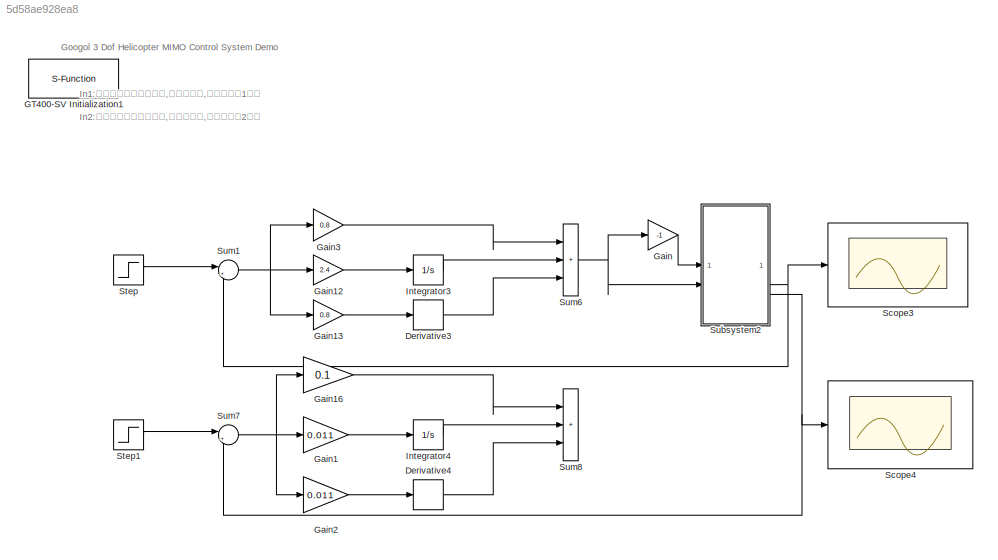
MODEL slx_5d58ae928ea8
KIND model
CONFIG AbsTol = auto
CONFIG EnableMultiTasking = off
CONFIG FixedStep = 0.005
CONFIG MaxStep = auto
CONFIG MinStep = auto
CONFIG RelTol = 1e-3
CONFIG SampleTimeConstraint = Unconstrained
CONFIG SolverName = ode1
CONFIG StartTime = 0.0
CONFIG StopTime = inf
BLOCK [Derivative] Derivative3
BLOCK [Derivative] Derivative4
BLOCK [S-Function] GT400-SV Initialization1
  EnableBusSupport = off
  FunctionName = Initialize
  Parameters = openloop
  Priority = 0
  SFcnIsStateOwnerBlock = off
  SFunctionDeploymentMode = off
BLOCK [Gain] Gain
  Gain = -1
BLOCK [Gain] Gain1
  Gain = 0.011
BLOCK [Gain] Gain12
  Gain = 2.4
BLOCK [Gain] Gain13
  Gain = 0.8
BLOCK [Gain] Gain16
  Gain = 0.1
BLOCK [Gain] Gain2
  Gain = 0.011
BLOCK [Gain] Gain3
  Gain = 0.8
BLOCK [Integrator] Integrator3
BLOCK [Integrator] Integrator4
BLOCK [Scope] Scope3
  Floating = off
  NumInputPorts = 1
  ScopeSpecificationString = Simulink.scopes.TimeScopeBlockCfg('CurrentConfiguration', extmgr.ConfigurationSet(extmgr.Configuration('Core','General UI',true),extmgr.Configuration('Core','Source UI',true),extmgr.Configuration('Sources','WiredSimulink',true,'DataLogging',true,'DataLoggingSaveFormat','StructureWithTime','DataLoggingMaxPoints','50000000','DataLoggingLimitDataPoints',true,'DataLoggingDecimation','1','DataLoggingDe...<+1679ch>
BLOCK [Scope] Scope4
  Floating = off
  NumInputPorts = 1
  ScopeSpecificationString = Simulink.scopes.TimeScopeBlockCfg('CurrentConfiguration', extmgr.ConfigurationSet(extmgr.Configuration('Core','General UI',true),extmgr.Configuration('Core','Source UI',true),extmgr.Configuration('Sources','WiredSimulink',true,'DataLoggingVariableName','ScopeData3','DataLoggingSaveFormat','StructureWithTime','DataLoggingLimitDataPoints',true,'DataLoggingDecimation','1','DataLoggingDecimateData',tr...<+1630ch>
BLOCK [Step] Step
  After = 0.3
  SampleTime = 0
BLOCK [Step] Step1
  After = 3
  SampleTime = 0
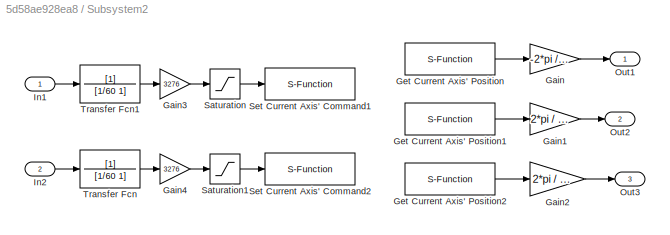
BLOCK [SubSystem] Subsystem2
BLOCK [Gain] Subsystem2/Gain
  Gain = -2*pi / 2400
  OutDataTypeStr = Inherit: Same as input
  ParamDataTypeStr = Inherit: Same as input
  SaturateOnIntegerOverflow = on
BLOCK [Gain] Subsystem2/Gain1
  Gain = 2*pi / 2400
  OutDataTypeStr = Inherit: Same as input
  ParamDataTypeStr = Inherit: Same as input
  SaturateOnIntegerOverflow = on
BLOCK [Gain] Subsystem2/Gain2
  Gain = 2*pi / 2400
  OutDataTypeStr = Inherit: Same as input
  ParamDataTypeStr = Inherit: Same as input
  SaturateOnIntegerOverflow = on
BLOCK [Gain] Subsystem2/Gain3
  Gain = 3276
BLOCK [Gain] Subsystem2/Gain4
  Gain = 3276
BLOCK [S-Function] Subsystem2/Get Current Axis' Position
  EnableBusSupport = off
  FunctionName = GetPos
  Parameters = axis
  Priority = 1
  SFcnIsStateOwnerBlock = off
  SFunctionDeploymentMode = off
BLOCK [S-Function] Subsystem2/Get Current Axis' Position1
  EnableBusSupport = off
  FunctionName = GetPos
  Parameters = axis
  Priority = 1
  SFcnIsStateOwnerBlock = off
  SFunctionDeploymentMode = off
BLOCK [S-Function] Subsystem2/Get Current Axis' Position2
  EnableBusSupport = off
  FunctionName = GetPos
  Parameters = axis
  Priority = 1
  SFcnIsStateOwnerBlock = off
  SFunctionDeploymentMode = off
BLOCK [Inport] Subsystem2/In1
BLOCK [Inport] Subsystem2/In2
  Port = 2
BLOCK [Outport] Subsystem2/Out1
BLOCK [Outport] Subsystem2/Out2
  Port = 2
BLOCK [Outport] Subsystem2/Out3
  Port = 3
BLOCK [Saturate] Subsystem2/Saturation
  LowerLimit = 0
  UpperLimit = 9000
BLOCK [Saturate] Subsystem2/Saturation1
  LowerLimit = 0
  UpperLimit = 9000
BLOCK [S-Function] Subsystem2/Set Current Axis' Command1
  EnableBusSupport = off
  FunctionName = SetMtrCmd
  Parameters = axis
  Priority = 1
  SFcnIsStateOwnerBlock = off
  SFunctionDeploymentMode = off
BLOCK [S-Function] Subsystem2/Set Current Axis' Command2
  EnableBusSupport = off
  FunctionName = SetMtrCmd
  Parameters = axis
  Priority = 1
  SFcnIsStateOwnerBlock = off
  SFunctionDeploymentMode = off
BLOCK [TransferFcn] Subsystem2/Transfer Fcn
  Denominator = [1/60 1]
BLOCK [TransferFcn] Subsystem2/Transfer Fcn1
  Denominator = [1/60 1]
BLOCK [Sum] Sum1
  Inputs = |+-
BLOCK [Sum] Sum6
  IconShape = rectangular
  Inputs = |+++
BLOCK [Sum] Sum7
  Inputs = |+-
BLOCK [Sum] Sum8
  IconShape = rectangular
  Inputs = |+++
ANNOTATION (root): Googol 3 Dof Helicopter MIMO Control System Demo
ANNOTATION (root): In1:从机尾往螺旋桨方向看,右侧螺旋桨,对应手册的1号桨 In2:从机尾往螺旋桨方向看,左侧螺旋桨,对应手册的2号桨
LINE Derivative3:1 -> Sum6:3
LINE Derivative4:1 -> Sum8:3
LINE Gain12:1 -> Integrator3:1
LINE Gain13:1 -> Derivative3:1
LINE Gain16:1 -> Sum8:1
LINE Gain1:1 -> Integrator4:1
LINE Gain2:1 -> Derivative4:1
LINE Gain3:1 -> Sum6:1
LINE Gain:1 -> Subsystem2:1
LINE Integrator3:1 -> Sum6:2
LINE Integrator4:1 -> Sum8:2
LINE Step1:1 -> Sum7:1
LINE Step:1 -> Sum1:1
LINE Subsystem2/Gain1:1 -> Subsystem2/Out2:1
LINE Subsystem2/Gain2:1 -> Subsystem2/Out3:1
LINE Subsystem2/Gain3:1 -> Subsystem2/Saturation:1
LINE Subsystem2/Gain4:1 -> Subsystem2/Saturation1:1
LINE Subsystem2/Gain:1 -> Subsystem2/Out1:1
LINE Subsystem2/Get Current Axis' Position1:1 -> Subsystem2/Gain1:1
LINE Subsystem2/Get Current Axis' Position2:1 -> Subsystem2/Gain2:1
LINE Subsystem2/Get Current Axis' Position:1 -> Subsystem2/Gain:1
LINE Subsystem2/In1:1 -> Subsystem2/Transfer Fcn1:1
LINE Subsystem2/In2:1 -> Subsystem2/Transfer Fcn:1
LINE Subsystem2/Saturation1:1 -> Subsystem2/Set Current Axis' Command2:1
LINE Subsystem2/Saturation:1 -> Subsystem2/Set Current Axis' Command1:1
LINE Subsystem2/Transfer Fcn1:1 -> Subsystem2/Gain3:1
LINE Subsystem2/Transfer Fcn:1 -> Subsystem2/Gain4:1
NET Subsystem2:2 -> Scope3:1, Sum1:2
NET Subsystem2:3 -> Scope4:1, Sum7:2
NET Sum1:1 -> Gain12:1, Gain13:1, Gain3:1
NET Sum6:1 -> Gain:1, Subsystem2:2
NET Sum7:1 -> Gain16:1, Gain1:1, Gain2:1
note: NET lines group one-source signal fan-out (src -> all destinations, sorted); 1:1 wires keep LINE
